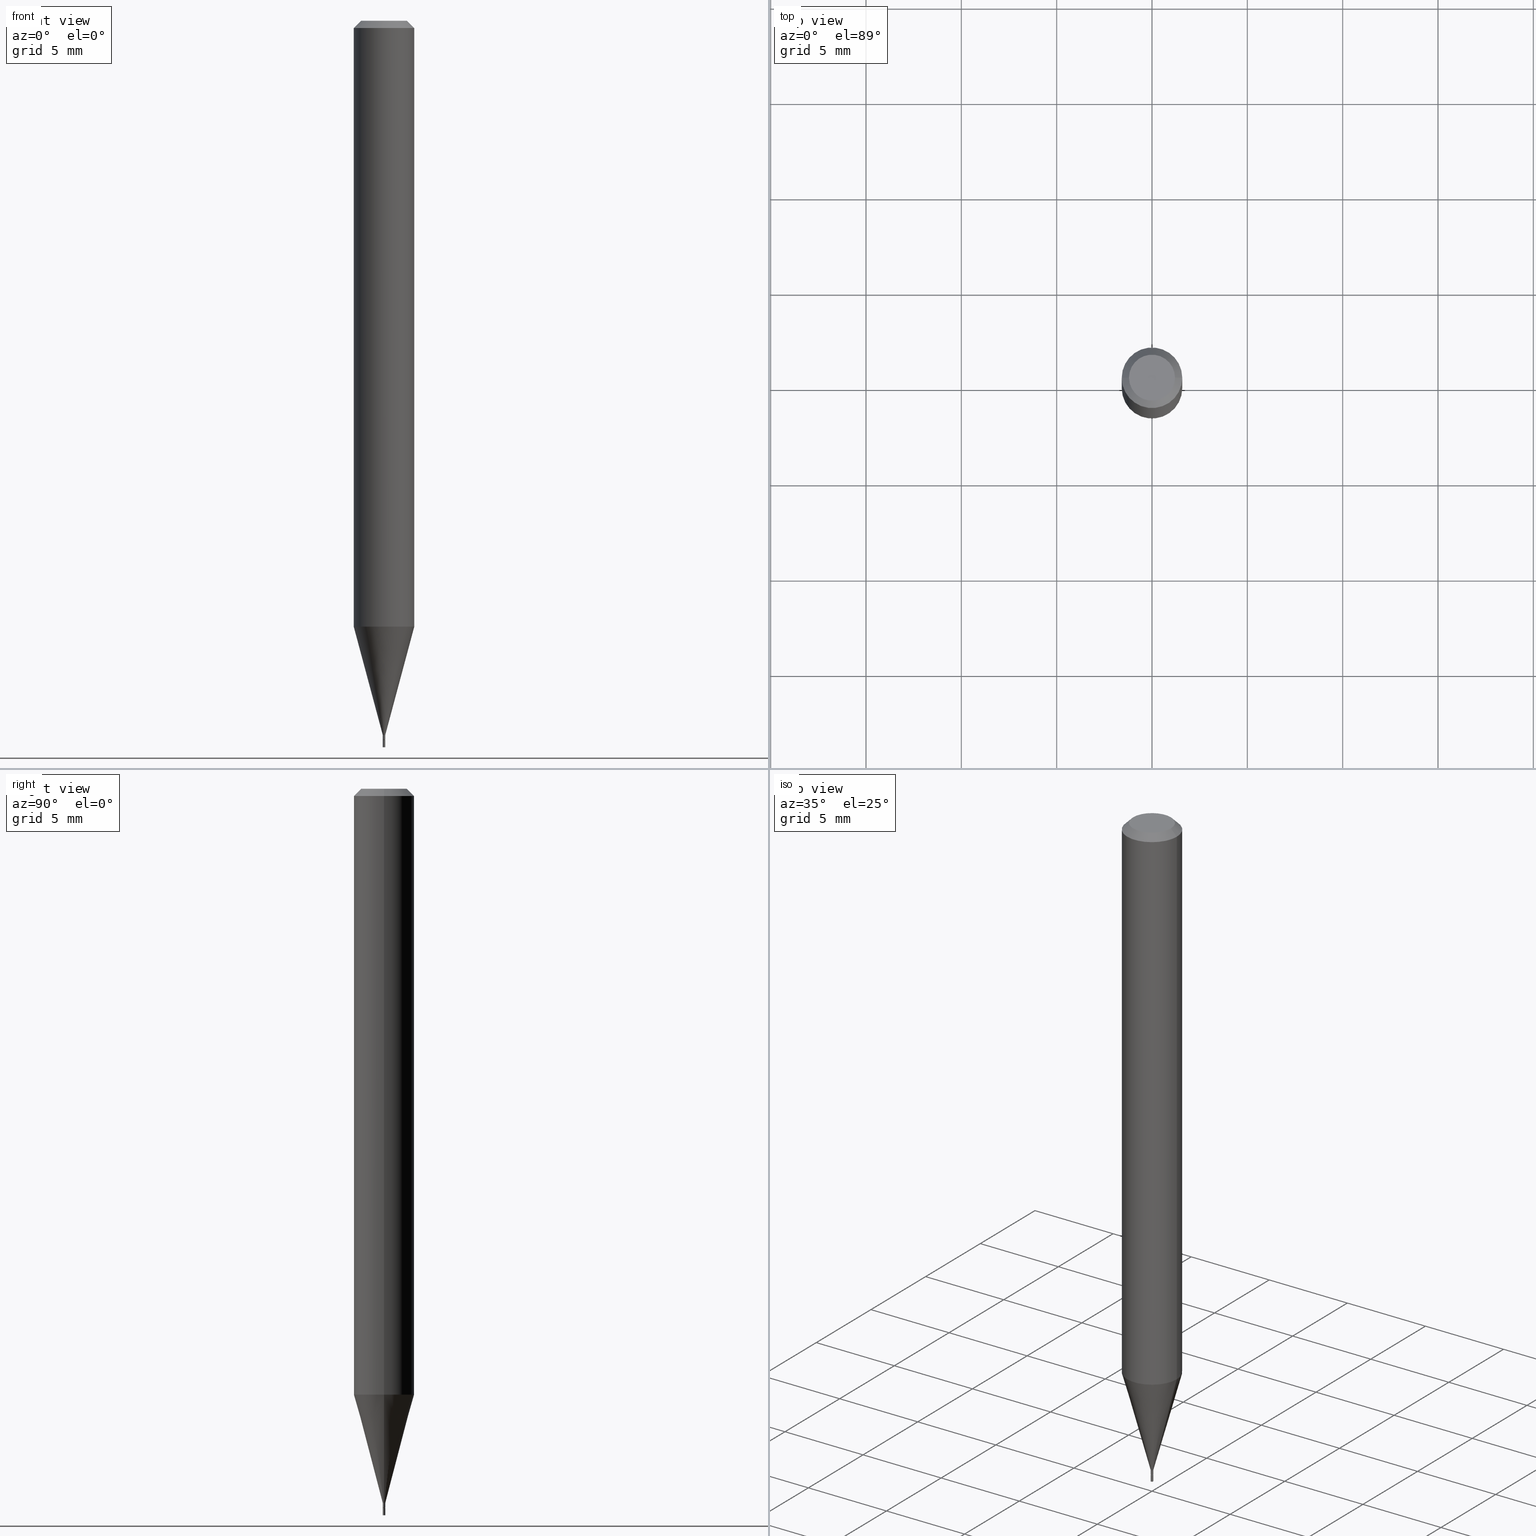
[diagram: canonical four-view strip — front | top / right | iso, engineering-drawing reading convention]
A machine part, canonical four-view strip (front | top / right | iso — engineering-drawing reading convention). The complete STEP part file that produces these views, byte-faithful:
ISO-10303-21;
HEADER;
FILE_DESCRIPTION (( 'STEP AP203' ),
    '1' );
FILE_NAME ('02275.STEP',
    '2024-03-18T19:59:43',
    ( '' ),
    ( '' ),
    'SwSTEP 2.0',
    'SolidWorks 2023',
    '' );
FILE_SCHEMA (( 'CONFIG_CONTROL_DESIGN' ));
ENDSEC;

DATA;
#1 = COORDINATED_UNIVERSAL_TIME_OFFSET ( 5, 0, .BEHIND. ) ;
#2 = LINE ( 'NONE', #253, #123 ) ;
#3 = ORIENTED_EDGE ( 'NONE', *, *, #358, .F. ) ;
#4 = CALENDAR_DATE ( 2024, 18, 3 ) ;
#5 = EDGE_CURVE ( 'NONE', #235, #274, #221, .T. ) ;
#6 = FACE_OUTER_BOUND ( 'NONE', #418, .T. ) ;
#7 = CLOSED_SHELL ( 'NONE', ( #246, #383, #28, #76, #368, #350, #32, #426, #348, #203, #432, #403 ) ) ;
#8 = ORIENTED_EDGE ( 'NONE', *, *, #353, .F. ) ;
#9 = VECTOR ( 'NONE', #66, 39.37007874015748854 ) ;
#10 = VERTEX_POINT ( 'NONE', #146 ) ;
#11 = CARTESIAN_POINT ( 'NONE',  ( 0.000000000000000000, 0.000000000000000000, 0.000000000000000000 ) ) ;
#12 = EDGE_CURVE ( 'NONE', #19, #443, #2, .T. ) ;
#13 = CARTESIAN_POINT ( 'NONE',  ( -0.002499999999999998751, -5.193272329829392708E-15, -1.485000000000000098 ) ) ;
#14 = ORIENTED_EDGE ( 'NONE', *, *, #446, .F. ) ;
#15 = AXIS2_PLACEMENT_3D ( 'NONE', #282, #388, #24 ) ;
#16 = CARTESIAN_POINT ( 'NONE',  ( 3.059469659142613603E-29, -4.368111829779168212E-15, -1.251076951545867955 ) ) ;
#17 = EDGE_LOOP ( 'NONE', ( #237, #232 ) ) ;
#18 = DIRECTION ( 'NONE',  ( -2.445468806185136597E-29, 3.491481338843145583E-15, 1.000000000000000000 ) ) ;
#19 = VERTEX_POINT ( 'NONE', #178 ) ;
#20 = CARTESIAN_POINT ( 'NONE',  ( 0.002499999999999921989, -5.167392381487857245E-15, -1.475000000000000533 ) ) ;
#21 = EDGE_CURVE ( 'NONE', #443, #208, #384, .T. ) ;
#22 = DIMENSIONAL_EXPONENTS ( 1.000000000000000000, 0.000000000000000000, 0.000000000000000000, 0.000000000000000000, 0.000000000000000000, 0.000000000000000000, 0.000000000000000000 ) ;
#23 = ORIENTED_EDGE ( 'NONE', *, *, #285, .F. ) ;
#24 = DIRECTION ( 'NONE',  ( 1.000000000000000000, -6.982962677686266711E-15, 4.876176775795936353E-29 ) ) ;
#25 = CIRCLE ( 'NONE', #139, 0.04749999999999999362 ) ;
#26 = EDGE_LOOP ( 'NONE', ( #305, #377, #333, #170 ) ) ;
#27 = ORIENTED_EDGE ( 'NONE', *, *, #85, .T. ) ;
#28 = ADVANCED_FACE ( 'NONE', ( #361 ), #196, .T. ) ;
#29 = DIRECTION ( 'NONE',  ( 1.000000000000000000, -6.982962677686267499E-15, 4.852736867747366768E-29 ) ) ;
#30 = FACE_OUTER_BOUND ( 'NONE', #311, .T. ) ;
#31 = AXIS2_PLACEMENT_3D ( 'NONE', #51, #409, #412 ) ;
#32 = ADVANCED_FACE ( 'NONE', ( #81 ), #328, .T. ) ;
#33 = APPROVAL_STATUS ( 'not_yet_approved' ) ;
#34 = DIRECTION ( 'NONE',  ( -2.445468806185136597E-29, 3.491481338843145583E-15, 1.000000000000000000 ) ) ;
#35 = EDGE_CURVE ( 'NONE', #157, #339, #195, .T. ) ;
#36 = APPROVAL_DATE_TIME ( #80, #70 ) ;
#37 = DIRECTION ( 'NONE',  ( 1.000000000000000000, -6.982962677686266711E-15, 4.876176775795935793E-29 ) ) ;
#38 = VECTOR ( 'NONE', #318, 39.37007874015748143 ) ;
#39 = PERSON_AND_ORGANIZATION ( #179, #62 ) ;
#40 = DIRECTION ( 'NONE',  ( 1.000000000000000000, -6.982962677686270655E-15, 0.000000000000000000 ) ) ;
#41 = EDGE_CURVE ( 'NONE', #274, #235, #367, .T. ) ;
#42 = COORDINATED_UNIVERSAL_TIME_OFFSET ( 5, 0, .BEHIND. ) ;
#43 = DIRECTION ( 'NONE',  ( 1.000000000000000000, -6.982962677686142071E-15, 0.000000000000000000 ) ) ;
#44 = ORIENTED_EDGE ( 'NONE', *, *, #410, .T. ) ;
#45 = CARTESIAN_POINT ( 'NONE',  ( 3.668203209277704895E-29, -5.237222008264718177E-15, -1.500000000000000222 ) ) ;
#46 = AXIS2_PLACEMENT_3D ( 'NONE', #296, #227, #355 ) ;
#47 = AXIS2_PLACEMENT_3D ( 'NONE', #69, #141, #327 ) ;
#48 = CYLINDRICAL_SURFACE ( 'NONE', #265, 0.002499999999999921989 ) ;
#49 = CARTESIAN_POINT ( 'NONE',  ( 3.631521177184928138E-29, -5.184849788182071492E-15, -1.485000000000000098 ) ) ;
#50 = CC_DESIGN_DATE_AND_TIME_ASSIGNMENT ( #214, #462, ( #292 ) ) ;
#51 = CARTESIAN_POINT ( 'NONE',  ( 3.631521177184928138E-29, -5.184849788182071492E-15, -1.485000000000000098 ) ) ;
#52 = ORIENTED_EDGE ( 'NONE', *, *, #189, .F. ) ;
#53 = VECTOR ( 'NONE', #440, 39.37007874015748143 ) ;
#54 = DIRECTION ( 'NONE',  ( -2.445468806185136877E-29, 3.491481338843145188E-15, 1.000000000000000000 ) ) ;
#55 = ORIENTED_EDGE ( 'NONE', *, *, #458, .F. ) ;
#56 = CARTESIAN_POINT ( 'NONE',  ( 3.607066489123077713E-29, -5.149934974793642209E-15, -1.475000000000000533 ) ) ;
#57 = ORIENTED_EDGE ( 'NONE', *, *, #275, .F. ) ;
#58 = FACE_OUTER_BOUND ( 'NONE', #420, .T. ) ;
#59 = ORIENTED_EDGE ( 'NONE', *, *, #260, .T. ) ;
#60 = DIRECTION ( 'NONE',  ( -2.445468806185136597E-29, 3.491481338843145583E-15, 1.000000000000000000 ) ) ;
#61 = VECTOR ( 'NONE', #54, 39.37007874015748143 ) ;
#62 = ORGANIZATION ( 'UNSPECIFIED', 'UNSPECIFIED', '' ) ;
#63 = ORIENTED_EDGE ( 'NONE', *, *, #159, .T. ) ;
#64 = DIRECTION ( 'NONE',  ( -2.445468806185136597E-29, 3.491481338843145583E-15, 1.000000000000000000 ) ) ;
#65 = DIRECTION ( 'NONE',  ( 2.438088387897960049E-29, -3.491481338843145188E-15, -1.000000000000000000 ) ) ;
#66 = DIRECTION ( 'NONE',  ( -0.2588190451025211281, 5.211531920934547886E-15, 0.9659258262890679791 ) ) ;
#67 = AXIS2_PLACEMENT_3D ( 'NONE', #45, #434, #115 ) ;
#68 = CIRCLE ( 'NONE', #332, 0.002499999999999921989 ) ;
#69 = CARTESIAN_POINT ( 'NONE',  ( 0.000000000000000000, 0.000000000000000000, 0.000000000000000000 ) ) ;
#70 = APPROVAL ( #356, 'UNSPECIFIED' ) ;
#71 = CARTESIAN_POINT ( 'NONE',  ( 0.000000000000000000, 0.000000000000000000, 0.000000000000000000 ) ) ;
#72 = PERSON_AND_ORGANIZATION_ROLE ( 'creator' ) ;
#73 = CARTESIAN_POINT ( 'NONE',  ( 3.630298442781835897E-29, -5.183104047512649988E-15, -1.484500000000000153 ) ) ;
#74 = APPROVAL_DATE_TIME ( #461, #320 ) ;
#75 = FACE_OUTER_BOUND ( 'NONE', #119, .T. ) ;
#76 = ADVANCED_FACE ( 'NONE', ( #6 ), #187, .T. ) ;
#77 = AXIS2_PLACEMENT_3D ( 'NONE', #202, #103, #278 ) ;
#78 = ORIENTED_EDGE ( 'NONE', *, *, #91, .F. ) ;
#79 = CARTESIAN_POINT ( 'NONE',  ( 0.001999999999999999608, -5.198815713537444309E-15, -1.485000000000000098 ) ) ;
#80 = DATE_AND_TIME ( #400, #324 ) ;
#81 = FACE_OUTER_BOUND ( 'NONE', #277, .T. ) ;
#82 = FACE_OUTER_BOUND ( 'NONE', #454, .T. ) ;
#83 = CC_DESIGN_DATE_AND_TIME_ASSIGNMENT ( #217, #284, ( #386 ) ) ;
#84 = FACE_OUTER_BOUND ( 'NONE', #17, .T. ) ;
#85 = EDGE_CURVE ( 'NONE', #413, #346, #180, .T. ) ;
#86 = PLANE ( 'NONE',  #323 ) ;
#87 = VERTEX_POINT ( 'NONE', #225 ) ;
#88 = LINE ( 'NONE', #94, #435 ) ;
#89 = PRODUCT ( '02275', '02275', '', ( #220 ) ) ;
#90 = ORIENTED_EDGE ( 'NONE', *, *, #258, .F. ) ;
#91 = EDGE_CURVE ( 'NONE', #10, #346, #464, .T. ) ;
#92 = CIRCLE ( 'NONE', #317, 0.002499999999999921989 ) ;
#93 = PRODUCT_DEFINITION_FORMATION_WITH_SPECIFIED_SOURCE ( 'ANY', '', #89, .NOT_KNOWN. ) ;
#94 = CARTESIAN_POINT ( 'NONE',  ( -0.002499999999999998751, 1.776356839400249577E-17, -1.229733772563725911E-31 ) ) ;
#95 = ORIENTED_EDGE ( 'NONE', *, *, #5, .T. ) ;
#96 = CARTESIAN_POINT ( 'NONE',  ( 0.001999999999999999608, -5.198815713537444309E-15, -1.485000000000000098 ) ) ;
#97 = PRODUCT_DEFINITION_SHAPE ( 'NONE', 'NONE',  #292 ) ;
#98 = MANIFOLD_SOLID_BREP ( 'Body-Move/Copy2[2]', #7 ) ;
#99 = ORIENTED_EDGE ( 'NONE', *, *, #285, .T. ) ;
#100 = FACE_OUTER_BOUND ( 'NONE', #341, .T. ) ;
#101 = ORIENTED_EDGE ( 'NONE', *, *, #451, .T. ) ;
#102 = CONICAL_SURFACE ( 'NONE', #359, 0.06250000000000000000, 0.7853981633974278509 ) ;
#103 = DIRECTION ( 'NONE',  ( -2.445468806185136597E-29, 3.491481338843145583E-15, 1.000000000000000000 ) ) ;
#104 = DIRECTION ( 'NONE',  ( 1.000000000000000000, -6.982962677686356641E-15, 0.000000000000000000 ) ) ;
#105 = PERSON_AND_ORGANIZATION ( #179, #62 ) ;
#106 = DIRECTION ( 'NONE',  ( 1.000000000000000000, -6.982962677686266711E-15, 4.876176775795936914E-29 ) ) ;
#107 = CONICAL_SURFACE ( 'NONE', #345, 0.002499999999999921989, 0.2617993877991498519 ) ;
#108 = LOCAL_TIME ( 15, 59, 43.00000000000000000, #148 ) ;
#109 = APPLICATION_PROTOCOL_DEFINITION ( 'international standard', 'config_control_design', 1994, #137 ) ;
#110 = CARTESIAN_POINT ( 'NONE',  ( 3.668203209277705088E-31, -5.237222008264718399E-17, -0.01499999999999999944 ) ) ;
#111 = SHAPE_DEFINITION_REPRESENTATION ( #97, #286 ) ;
#112 = CC_DESIGN_PERSON_AND_ORGANIZATION_ASSIGNMENT ( #436, #431, ( #386 ) ) ;
#113 = DIRECTION ( 'NONE',  ( 1.000000000000000000, -6.982962677686267499E-15, 4.852736867747366768E-29 ) ) ;
#114 = APPROVAL_STATUS ( 'not_yet_approved' ) ;
#115 = DIRECTION ( 'NONE',  ( 1.000000000000000000, -6.982962677686142071E-15, 0.000000000000000000 ) ) ;
#116 = CIRCLE ( 'NONE', #302, 0.06250000000000000000 ) ;
#117 = APPROVAL_ROLE ( '' ) ;
#118 = DIRECTION ( 'NONE',  ( -0.7071067811865330288, 2.468850131082105205E-15, -0.7071067811865620056 ) ) ;
#119 = EDGE_LOOP ( 'NONE', ( #128, #271 ) ) ;
#120 = CARTESIAN_POINT ( 'NONE',  ( 3.607066489123077713E-29, -5.149934974793642209E-15, -1.475000000000000533 ) ) ;
#121 = PRODUCT_RELATED_PRODUCT_CATEGORY ( 'detail', '', ( #89 ) ) ;
#122 = DIRECTION ( 'NONE',  ( -2.445468806185136597E-29, 3.491481338843145583E-15, 1.000000000000000000 ) ) ;
#123 = VECTOR ( 'NONE', #118, 39.37007874015748143 ) ;
#124 = AXIS2_PLACEMENT_3D ( 'NONE', #49, #193, #336 ) ;
#125 = CC_DESIGN_APPROVAL ( #135, ( #292 ) ) ;
#126 = FACE_OUTER_BOUND ( 'NONE', #197, .T. ) ;
#127 = DIRECTION ( 'NONE',  ( -2.445468806185136597E-29, 3.491481338843145583E-15, 1.000000000000000000 ) ) ;
#128 = ORIENTED_EDGE ( 'NONE', *, *, #267, .F. ) ;
#129 = CARTESIAN_POINT ( 'NONE',  ( -0.002499999999999921989, 1.776356839400195035E-17, -1.229733772563688032E-31 ) ) ;
#130 = ORIENTED_EDGE ( 'NONE', *, *, #353, .T. ) ;
#131 = CIRCLE ( 'NONE', #124, 0.001999999999999999608 ) ;
#132 = ORIENTED_EDGE ( 'NONE', *, *, #267, .T. ) ;
#133 = DIRECTION ( 'NONE',  ( 1.000000000000000000, -6.982962677686334553E-15, 0.000000000000000000 ) ) ;
#134 = VERTEX_POINT ( 'NONE', #463 ) ;
#135 = APPROVAL ( #114, 'UNSPECIFIED' ) ;
#136 = ORIENTED_EDGE ( 'NONE', *, *, #21, .T. ) ;
#137 = APPLICATION_CONTEXT ( 'configuration controlled 3d designs of mechanical parts and assemblies' ) ;
#138 = DIRECTION ( 'NONE',  ( -2.445468806185136597E-29, 3.491481338843145583E-15, 1.000000000000000000 ) ) ;
#139 = AXIS2_PLACEMENT_3D ( 'NONE', #145, #433, #113 ) ;
#140 = LINE ( 'NONE', #382, #422 ) ;
#141 = DIRECTION ( 'NONE',  ( 0.000000000000000000, 0.000000000000000000, 1.000000000000000000 ) ) ;
#142 = APPROVAL_ROLE ( '' ) ;
#143 = CARTESIAN_POINT ( 'NONE',  ( 0.000000000000000000, 0.000000000000000000, 0.000000000000000000 ) ) ;
#144 = CONICAL_SURFACE ( 'NONE', #205, 0.001999999999999999608, 0.7853981633974718157 ) ;
#145 = CARTESIAN_POINT ( 'NONE',  ( -1.505681066337554235E-44, 2.149713515899588158E-30, 6.157024217726067260E-16 ) ) ;
#146 = CARTESIAN_POINT ( 'NONE',  ( -0.002499999999999921989, -5.165340479118648651E-15, -1.484500000000000153 ) ) ;
#147 = ORIENTED_EDGE ( 'NONE', *, *, #174, .F. ) ;
#148 = COORDINATED_UNIVERSAL_TIME_OFFSET ( 5, 0, .BEHIND. ) ;
#149 = DIRECTION ( 'NONE',  ( -2.445468806185136597E-29, 3.491481338843145583E-15, 1.000000000000000000 ) ) ;
#150 = AXIS2_PLACEMENT_3D ( 'NONE', #120, #340, #269 ) ;
#151 = ORIENTED_EDGE ( 'NONE', *, *, #446, .T. ) ;
#152 = CARTESIAN_POINT ( 'NONE',  ( 0.06250000000000000000, -4.888073874380388472E-16, -0.01499999999999999944 ) ) ;
#153 = ADVANCED_FACE ( 'NONE', ( #218 ), #423, .T. ) ;
#154 = CARTESIAN_POINT ( 'NONE',  ( 0.002499999999999998751, -1.745740669421565815E-17, 1.219044193948983554E-31 ) ) ;
#155 = DIRECTION ( 'NONE',  ( -1.000000000000000000, 6.982962677686265922E-15, -4.876176775795935793E-29 ) ) ;
#156 = AXIS2_PLACEMENT_3D ( 'NONE', #110, #222, #395 ) ;
#157 = VERTEX_POINT ( 'NONE', #437 ) ;
#158 = CIRCLE ( 'NONE', #234, 0.002499999999999998751 ) ;
#159 = EDGE_CURVE ( 'NONE', #346, #10, #92, .T. ) ;
#160 = LINE ( 'NONE', #154, #352 ) ;
#161 = ORIENTED_EDGE ( 'NONE', *, *, #41, .T. ) ;
#162 = DIRECTION ( 'NONE',  ( 1.000000000000000000, -6.982962677686270655E-15, 0.000000000000000000 ) ) ;
#163 = EDGE_LOOP ( 'NONE', ( #343, #95, #190, #57 ) ) ;
#164 = ORIENTED_EDGE ( 'NONE', *, *, #258, .T. ) ;
#165 = CC_DESIGN_SECURITY_CLASSIFICATION ( #386, ( #93 ) ) ;
#166 = DIRECTION ( 'NONE',  ( -1.000000000000000000, 6.982962677686266711E-15, 0.000000000000000000 ) ) ;
#167 = VERTEX_POINT ( 'NONE', #289 ) ;
#168 = EDGE_CURVE ( 'NONE', #134, #87, #428, .T. ) ;
#169 = FACE_OUTER_BOUND ( 'NONE', #365, .T. ) ;
#170 = ORIENTED_EDGE ( 'NONE', *, *, #410, .F. ) ;
#171 = CARTESIAN_POINT ( 'NONE',  ( 0.002499999999999921989, -5.167392381487857245E-15, -1.475000000000000533 ) ) ;
#172 = AXIS2_PLACEMENT_3D ( 'NONE', #73, #149, #280 ) ;
#173 = CARTESIAN_POINT ( 'NONE',  ( -0.002499999999999921989, -5.132171406399640083E-15, -1.475000000000000533 ) ) ;
#174 = EDGE_CURVE ( 'NONE', #87, #443, #184, .T. ) ;
#175 = APPROVAL_PERSON_ORGANIZATION ( #105, #70, #117 ) ;
#176 = APPROVAL_ROLE ( '' ) ;
#177 = PERSON_AND_ORGANIZATION_ROLE ( 'creator' ) ;
#178 = CARTESIAN_POINT ( 'NONE',  ( -0.04749999999999999362, 3.578768372314221353E-16, 6.157024217726043594E-16 ) ) ;
#179 = PERSON ( 'UNSPECIFIED', 'UNSPECIFIED', 'UNSPECIFIED', ('UNSPECIFIED'), ('UNSPECIFIED'), ('UNSPECIFIED') ) ;
#180 = LINE ( 'NONE', #79, #295 ) ;
#181 = VECTOR ( 'NONE', #421, 39.37007874015748854 ) ;
#182 = CC_DESIGN_PERSON_AND_ORGANIZATION_ASSIGNMENT ( #394, #294, ( #93 ) ) ;
#183 = SECURITY_CLASSIFICATION_LEVEL ( 'unclassified' ) ;
#184 = LINE ( 'NONE', #325, #415 ) ;
#185 = EDGE_LOOP ( 'NONE', ( #3, #313, #101, #402 ) ) ;
#186 = PERSON_AND_ORGANIZATION ( #179, #62 ) ;
#187 = CYLINDRICAL_SURFACE ( 'NONE', #212, 0.06250000000000000000 ) ;
#188 = ORIENTED_EDGE ( 'NONE', *, *, #270, .T. ) ;
#189 = EDGE_CURVE ( 'NONE', #19, #242, #25, .T. ) ;
#190 = ORIENTED_EDGE ( 'NONE', *, *, #252, .T. ) ;
#191 = AXIS2_PLACEMENT_3D ( 'NONE', #256, #293, #43 ) ;
#192 = DIRECTION ( 'NONE',  ( 1.000000000000000000, -6.982962677686265922E-15, 4.876176775795935793E-29 ) ) ;
#193 = DIRECTION ( 'NONE',  ( -2.445468806185136597E-29, 3.491481338843145583E-15, 1.000000000000000000 ) ) ;
#194 = CARTESIAN_POINT ( 'NONE',  ( 3.631521177184928138E-29, -5.184849788182071492E-15, -1.485000000000000098 ) ) ;
#195 = CIRCLE ( 'NONE', #46, 0.002499999999999998751 ) ;
#196 = CONICAL_SURFACE ( 'NONE', #396, 0.06250000000000000000, 0.7853981633974278509 ) ;
#197 = EDGE_LOOP ( 'NONE', ( #379, #216 ) ) ;
#198 = FACE_OUTER_BOUND ( 'NONE', #201, .T. ) ;
#199 = ORIENTED_EDGE ( 'NONE', *, *, #159, .F. ) ;
#200 = CARTESIAN_POINT ( 'NONE',  ( -0.002499999999999998751, -5.193272329829392708E-15, -1.500000000000000222 ) ) ;
#201 = EDGE_LOOP ( 'NONE', ( #161, #188, #416, #445 ) ) ;
#202 = CARTESIAN_POINT ( 'NONE',  ( 3.631521177184928138E-29, -5.184849788182071492E-15, -1.485000000000000098 ) ) ;
#203 = ADVANCED_FACE ( 'NONE', ( #75 ), #86, .F. ) ;
#204 = ORIENTED_EDGE ( 'NONE', *, *, #260, .F. ) ;
#205 = AXIS2_PLACEMENT_3D ( 'NONE', #417, #138, #133 ) ;
#206 = LOCAL_TIME ( 15, 59, 43.00000000000000000, #1 ) ;
#207 = DIRECTION ( 'NONE',  ( -2.445468806185136877E-29, 3.491481338843145188E-15, 1.000000000000000000 ) ) ;
#208 = VERTEX_POINT ( 'NONE', #152 ) ;
#209 = PLANE ( 'NONE',  #407 ) ;
#210 = CC_DESIGN_PERSON_AND_ORGANIZATION_ASSIGNMENT ( #186, #177, ( #292 ) ) ;
#211 = CARTESIAN_POINT ( 'NONE',  ( 3.607066489123077713E-29, -5.149934974793642209E-15, -1.475000000000000533 ) ) ;
#212 = AXIS2_PLACEMENT_3D ( 'NONE', #322, #399, #37 ) ;
#213 =( CONVERSION_BASED_UNIT ( 'INCH', #389 ) LENGTH_UNIT ( ) NAMED_UNIT ( #22 ) );
#214 = DATE_AND_TIME ( #321, #266 ) ;
#215 = APPLICATION_CONTEXT ( 'configuration controlled 3d designs of mechanical parts and assemblies' ) ;
#216 = ORIENTED_EDGE ( 'NONE', *, *, #358, .T. ) ;
#217 = DATE_AND_TIME ( #427, #206 ) ;
#218 = FACE_OUTER_BOUND ( 'NONE', #163, .T. ) ;
#219 = EDGE_CURVE ( 'NONE', #87, #134, #116, .T. ) ;
#220 = MECHANICAL_CONTEXT ( 'NONE', #137, 'mechanical' ) ;
#221 = CIRCLE ( 'NONE', #67, 0.002499999999999998751 ) ;
#222 = DIRECTION ( 'NONE',  ( -2.445468806185136597E-29, 3.491481338843145583E-15, 1.000000000000000000 ) ) ;
#223 = CC_DESIGN_APPROVAL ( #70, ( #386 ) ) ;
#224 = PERSON_AND_ORGANIZATION_ROLE ( 'design_owner' ) ;
#225 = CARTESIAN_POINT ( 'NONE',  ( -0.06250000000000000000, -3.924022619929106385E-15, -1.251076951545867955 ) ) ;
#226 = ORIENTED_EDGE ( 'NONE', *, *, #275, .T. ) ;
#227 = DIRECTION ( 'NONE',  ( -2.445468806185136597E-29, 3.491481338843145583E-15, 1.000000000000000000 ) ) ;
#228 = CYLINDRICAL_SURFACE ( 'NONE', #397, 0.002499999999999998751 ) ;
#229 = AXIS2_PLACEMENT_3D ( 'NONE', #254, #357, #40 ) ;
#230 = LINE ( 'NONE', #301, #243 ) ;
#231 = CARTESIAN_POINT ( 'NONE',  ( 0.04749999999999999362, -4.035134999187568269E-16, 6.157024217726092898E-16 ) ) ;
#232 = ORIENTED_EDGE ( 'NONE', *, *, #5, .F. ) ;
#233 = DIRECTION ( 'NONE',  ( -2.445468806185136597E-29, 3.491481338843145583E-15, 1.000000000000000000 ) ) ;
#234 = AXIS2_PLACEMENT_3D ( 'NONE', #194, #233, #414 ) ;
#235 = VERTEX_POINT ( 'NONE', #200 ) ;
#236 = LINE ( 'NONE', #299, #53 ) ;
#237 = ORIENTED_EDGE ( 'NONE', *, *, #41, .F. ) ;
#238 = ADVANCED_FACE ( 'NONE', ( #84 ), #272, .F. ) ;
#239 = CARTESIAN_POINT ( 'NONE',  ( 0.002499999999999921989, -1.745740669421512197E-17, 1.219044193948946113E-31 ) ) ;
#240 = ORIENTED_EDGE ( 'NONE', *, *, #174, .T. ) ;
#241 = CARTESIAN_POINT ( 'NONE',  ( 3.607066489123077713E-29, -5.149934974793642209E-15, -1.475000000000000533 ) ) ;
#242 = VERTEX_POINT ( 'NONE', #231 ) ;
#243 = VECTOR ( 'NONE', #371, 39.37007874015748143 ) ;
#244 = DESIGN_CONTEXT ( 'detailed design', #215, 'design' ) ;
#245 =( NAMED_UNIT ( * ) SI_UNIT ( $, .STERADIAN. ) SOLID_ANGLE_UNIT ( ) );
#246 = ADVANCED_FACE ( 'NONE', ( #82 ), #48, .T. ) ;
#247 = ADVANCED_FACE ( 'NONE', ( #198 ), #228, .T. ) ;
#248 = CARTESIAN_POINT ( 'NONE',  ( 3.316907271900976096E-16, 0.04749999999999999362, 1.420058472912539912E-16 ) ) ;
#249 = CARTESIAN_POINT ( 'NONE',  ( -1.505681066337554235E-44, 2.149713515899588158E-30, 6.157024217726067260E-16 ) ) ;
#250 = DIRECTION ( 'NONE',  ( -1.000000000000000000, 6.982962677686266711E-15, 0.000000000000000000 ) ) ;
#251 = COORDINATED_UNIVERSAL_TIME_OFFSET ( 5, 0, .BEHIND. ) ;
#252 = EDGE_CURVE ( 'NONE', #274, #157, #160, .T. ) ;
#253 = CARTESIAN_POINT ( 'NONE',  ( -0.06250000000000000000, 3.840629472727444916E-16, -0.01499999999999999944 ) ) ;
#254 = CARTESIAN_POINT ( 'NONE',  ( 3.059469659142613603E-29, -4.368111829779168212E-15, -1.251076951545867955 ) ) ;
#255 = AXIS2_PLACEMENT_3D ( 'NONE', #143, #366, #106 ) ;
#256 = CARTESIAN_POINT ( 'NONE',  ( 3.668203209277704895E-29, -5.237222008264718177E-15, -1.500000000000000222 ) ) ;
#257 = AXIS2_PLACEMENT_3D ( 'NONE', #211, #380, #349 ) ;
#258 = EDGE_CURVE ( 'NONE', #438, #362, #448, .T. ) ;
#259 = COORDINATED_UNIVERSAL_TIME_OFFSET ( 5, 0, .BEHIND. ) ;
#260 = EDGE_CURVE ( 'NONE', #10, #438, #404, .T. ) ;
#261 = DIRECTION ( 'NONE',  ( 2.445468806185136597E-29, -3.491481338843145583E-15, -1.000000000000000000 ) ) ;
#262 = ORIENTED_EDGE ( 'NONE', *, *, #219, .F. ) ;
#263 = CARTESIAN_POINT ( 'NONE',  ( 1.745740669425197348E-17, 0.002499999999994814096, -1.485000000000000098 ) ) ;
#264 = CARTESIAN_POINT ( 'NONE',  ( 0.002499999999999998751, -5.254679414958934001E-15, -1.500000000000000222 ) ) ;
#265 = AXIS2_PLACEMENT_3D ( 'NONE', #11, #334, #306 ) ;
#266 = LOCAL_TIME ( 15, 59, 43.00000000000000000, #251 ) ;
#267 = EDGE_CURVE ( 'NONE', #413, #167, #273, .T. ) ;
#268 = CARTESIAN_POINT ( 'NONE',  ( 3.631521177184928138E-29, -5.184849788182071492E-15, -1.485000000000000098 ) ) ;
#269 = DIRECTION ( 'NONE',  ( 1.000000000000000000, -6.982962677686356641E-15, 0.000000000000000000 ) ) ;
#270 = EDGE_CURVE ( 'NONE', #235, #339, #88, .T. ) ;
#271 = ORIENTED_EDGE ( 'NONE', *, *, #335, .F. ) ;
#272 = PLANE ( 'NONE',  #376 ) ;
#273 = CIRCLE ( 'NONE', #31, 0.001999999999999999608 ) ;
#274 = VERTEX_POINT ( 'NONE', #264 ) ;
#275 = EDGE_CURVE ( 'NONE', #339, #157, #158, .T. ) ;
#276 = CYLINDRICAL_SURFACE ( 'NONE', #15, 0.002499999999999921989 ) ;
#277 = EDGE_LOOP ( 'NONE', ( #147, #373, #151, #411 ) ) ;
#278 = DIRECTION ( 'NONE',  ( 1.000000000000000000, -6.982962677686334553E-15, 0.000000000000000000 ) ) ;
#279 = ORIENTED_EDGE ( 'NONE', *, *, #91, .T. ) ;
#280 = DIRECTION ( 'NONE',  ( 1.000000000000000000, -6.982962677686356641E-15, 0.000000000000000000 ) ) ;
#281 = CONICAL_SURFACE ( 'NONE', #77, 0.001999999999999999608, 0.7853981633974718157 ) ;
#282 = CARTESIAN_POINT ( 'NONE',  ( 0.000000000000000000, 0.000000000000000000, 0.000000000000000000 ) ) ;
#283 = CARTESIAN_POINT ( 'NONE',  ( -0.06250000000000000000, -1.766152815080845227E-15, -0.01499999999999999944 ) ) ;
#284 = DATE_TIME_ROLE ( 'classification_date' ) ;
#285 = EDGE_CURVE ( 'NONE', #167, #10, #236, .T. ) ;
#286 = ADVANCED_BREP_SHAPE_REPRESENTATION ( '02275', ( #405, #98, #47 ), #424 ) ;
#287 = CIRCLE ( 'NONE', #390, 0.04749999999999999362 ) ;
#288 = PERSON_AND_ORGANIZATION ( #179, #62 ) ;
#289 = CARTESIAN_POINT ( 'NONE',  ( -0.001999999999999999608, -5.167989706292759063E-15, -1.485000000000000098 ) ) ;
#290 = APPROVAL_DATE_TIME ( #319, #135 ) ;
#291 = CARTESIAN_POINT ( 'NONE',  ( 3.668203209277705088E-31, -5.237222008264718399E-17, -0.01499999999999999944 ) ) ;
#292 = PRODUCT_DEFINITION ( 'UNKNOWN', '', #93, #244 ) ;
#293 = DIRECTION ( 'NONE',  ( -2.445468806185136597E-29, 3.491481338843145583E-15, 1.000000000000000000 ) ) ;
#294 = PERSON_AND_ORGANIZATION_ROLE ( 'design_supplier' ) ;
#295 = VECTOR ( 'NONE', #393, 39.37007874015748143 ) ;
#296 = CARTESIAN_POINT ( 'NONE',  ( 3.631521177184928138E-29, -5.184849788182071492E-15, -1.485000000000000098 ) ) ;
#297 = ORIENTED_EDGE ( 'NONE', *, *, #451, .F. ) ;
#298 = FACE_OUTER_BOUND ( 'NONE', #308, .T. ) ;
#299 = CARTESIAN_POINT ( 'NONE',  ( -0.001999999999999999608, -5.170638933466869476E-15, -1.485000000000000098 ) ) ;
#300 = EDGE_CURVE ( 'NONE', #362, #438, #68, .T. ) ;
#301 = CARTESIAN_POINT ( 'NONE',  ( 0.06250000000000000000, -4.811533449433679005E-16, -0.01499999999999999944 ) ) ;
#302 = AXIS2_PLACEMENT_3D ( 'NONE', #16, #18, #162 ) ;
#303 = CC_DESIGN_APPROVAL ( #320, ( #93 ) ) ;
#304 = DIRECTION ( 'NONE',  ( -2.438088387897960049E-29, 3.491481338843145188E-15, 1.000000000000000000 ) ) ;
#305 = ORIENTED_EDGE ( 'NONE', *, *, #300, .T. ) ;
#306 = DIRECTION ( 'NONE',  ( 1.000000000000000000, -6.982962677686266711E-15, 4.876176775795936353E-29 ) ) ;
#307 = CC_DESIGN_PERSON_AND_ORGANIZATION_ASSIGNMENT ( #288, #72, ( #93 ) ) ;
#308 = EDGE_LOOP ( 'NONE', ( #381, #226 ) ) ;
#309 =( NAMED_UNIT ( * ) PLANE_ANGLE_UNIT ( ) SI_UNIT ( $, .RADIAN. ) );
#310 = CONICAL_SURFACE ( 'NONE', #257, 0.002499999999999921989, 0.2617993877991498519 ) ;
#311 = EDGE_LOOP ( 'NONE', ( #55, #164, #44, #262 ) ) ;
#312 = DIRECTION ( 'NONE',  ( 1.000000000000000000, -6.982962677686266711E-15, 0.000000000000000000 ) ) ;
#313 = ORIENTED_EDGE ( 'NONE', *, *, #329, .T. ) ;
#314 =( LENGTH_UNIT ( ) NAMED_UNIT ( * ) SI_UNIT ( $, .METRE. ) );
#315 = ORIENTED_EDGE ( 'NONE', *, *, #300, .F. ) ;
#316 = CARTESIAN_POINT ( 'NONE',  ( 3.668203209277705088E-31, -5.237222008264718399E-17, -0.01499999999999999944 ) ) ;
#317 = AXIS2_PLACEMENT_3D ( 'NONE', #391, #34, #364 ) ;
#318 = DIRECTION ( 'NONE',  ( -2.445468806185136877E-29, 3.491481338843145188E-15, 1.000000000000000000 ) ) ;
#319 = DATE_AND_TIME ( #4, #429 ) ;
#320 = APPROVAL ( #33, 'UNSPECIFIED' ) ;
#321 = CALENDAR_DATE ( 2024, 18, 3 ) ;
#322 = CARTESIAN_POINT ( 'NONE',  ( 0.000000000000000000, 0.000000000000000000, 0.000000000000000000 ) ) ;
#323 = AXIS2_PLACEMENT_3D ( 'NONE', #268, #337, #192 ) ;
#324 = LOCAL_TIME ( 15, 59, 43.00000000000000000, #259 ) ;
#325 = CARTESIAN_POINT ( 'NONE',  ( -0.06250000000000000000, 4.440892098500626162E-16, -3.074334431409316114E-30 ) ) ;
#326 = ADVANCED_FACE ( 'NONE', ( #298 ), #439, .F. ) ;
#327 = DIRECTION ( 'NONE',  ( 1.000000000000000000, 0.000000000000000000, 0.000000000000000000 ) ) ;
#328 = CYLINDRICAL_SURFACE ( 'NONE', #459, 0.06250000000000000000 ) ;
#329 = EDGE_CURVE ( 'NONE', #242, #208, #230, .T. ) ;
#330 = DIRECTION ( 'NONE',  ( -2.445468806185136597E-29, 3.491481338843145583E-15, 1.000000000000000000 ) ) ;
#331 = ORIENTED_EDGE ( 'NONE', *, *, #335, .T. ) ;
#332 = AXIS2_PLACEMENT_3D ( 'NONE', #56, #122, #342 ) ;
#333 = ORIENTED_EDGE ( 'NONE', *, *, #168, .F. ) ;
#334 = DIRECTION ( 'NONE',  ( -2.445468806185136597E-29, 3.491481338843145583E-15, 1.000000000000000000 ) ) ;
#335 = EDGE_CURVE ( 'NONE', #167, #413, #131, .T. ) ;
#336 = DIRECTION ( 'NONE',  ( 1.000000000000000000, -6.982962677686334553E-15, 0.000000000000000000 ) ) ;
#337 = DIRECTION ( 'NONE',  ( -2.438088387897960049E-29, 3.491481338843145188E-15, 1.000000000000000000 ) ) ;
#338 = AXIS2_PLACEMENT_3D ( 'NONE', #263, #408, #155 ) ;
#339 = VERTEX_POINT ( 'NONE', #13 ) ;
#340 = DIRECTION ( 'NONE',  ( -2.445468806185136597E-29, 3.491481338843145583E-15, 1.000000000000000000 ) ) ;
#341 = EDGE_LOOP ( 'NONE', ( #385, #52, #450, #136 ) ) ;
#342 = DIRECTION ( 'NONE',  ( 1.000000000000000000, -6.982962677686356641E-15, 0.000000000000000000 ) ) ;
#343 = ORIENTED_EDGE ( 'NONE', *, *, #270, .F. ) ;
#344 = DIRECTION ( 'NONE',  ( -1.000000000000000000, 6.982962677686265922E-15, -4.876176775795935793E-29 ) ) ;
#345 = AXIS2_PLACEMENT_3D ( 'NONE', #241, #457, #104 ) ;
#346 = VERTEX_POINT ( 'NONE', #441 ) ;
#347 = ORIENTED_EDGE ( 'NONE', *, *, #168, .T. ) ;
#348 = ADVANCED_FACE ( 'NONE', ( #126 ), #209, .F. ) ;
#349 = DIRECTION ( 'NONE',  ( 1.000000000000000000, -6.982962677686356641E-15, 0.000000000000000000 ) ) ;
#350 = ADVANCED_FACE ( 'NONE', ( #30 ), #310, .T. ) ;
#351 = FACE_OUTER_BOUND ( 'NONE', #456, .T. ) ;
#352 = VECTOR ( 'NONE', #375, 39.37007874015748143 ) ;
#353 = EDGE_CURVE ( 'NONE', #346, #362, #460, .T. ) ;
#354 = PERSON_AND_ORGANIZATION ( #179, #62 ) ;
#355 = DIRECTION ( 'NONE',  ( 1.000000000000000000, -6.982962677686142071E-15, 0.000000000000000000 ) ) ;
#356 = APPROVAL_STATUS ( 'not_yet_approved' ) ;
#357 = DIRECTION ( 'NONE',  ( -2.445468806185136597E-29, 3.491481338843145583E-15, 1.000000000000000000 ) ) ;
#358 = EDGE_CURVE ( 'NONE', #242, #19, #287, .T. ) ;
#359 = AXIS2_PLACEMENT_3D ( 'NONE', #316, #425, #166 ) ;
#360 = APPLICATION_PROTOCOL_DEFINITION ( 'international standard', 'config_control_design', 1994, #215 ) ;
#361 = FACE_OUTER_BOUND ( 'NONE', #185, .T. ) ;
#362 = VERTEX_POINT ( 'NONE', #20 ) ;
#363 = PERSON_AND_ORGANIZATION ( #179, #62 ) ;
#364 = DIRECTION ( 'NONE',  ( 1.000000000000000000, -6.982962677686356641E-15, 0.000000000000000000 ) ) ;
#365 = EDGE_LOOP ( 'NONE', ( #204, #279, #130, #90 ) ) ;
#366 = DIRECTION ( 'NONE',  ( -2.445468806185136597E-29, 3.491481338843145583E-15, 1.000000000000000000 ) ) ;
#367 = CIRCLE ( 'NONE', #191, 0.002499999999999998751 ) ;
#368 = ADVANCED_FACE ( 'NONE', ( #419 ), #107, .T. ) ;
#369 = DIRECTION ( 'NONE',  ( 1.000000000000000000, -6.982962677686266711E-15, 4.876176775795936914E-29 ) ) ;
#370 = APPROVAL_PERSON_ORGANIZATION ( #39, #320, #142 ) ;
#371 = DIRECTION ( 'NONE',  ( 0.7071067811865330288, -7.319954787623207136E-15, -0.7071067811865620056 ) ) ;
#372 = CARTESIAN_POINT ( 'NONE',  ( 0.000000000000000000, 0.000000000000000000, 0.000000000000000000 ) ) ;
#373 = ORIENTED_EDGE ( 'NONE', *, *, #219, .T. ) ;
#374 = CC_DESIGN_PERSON_AND_ORGANIZATION_ASSIGNMENT ( #354, #224, ( #89 ) ) ;
#375 = DIRECTION ( 'NONE',  ( -2.445468806185136877E-29, 3.491481338843145188E-15, 1.000000000000000000 ) ) ;
#376 = AXIS2_PLACEMENT_3D ( 'NONE', #378, #304, #442 ) ;
#377 = ORIENTED_EDGE ( 'NONE', *, *, #458, .T. ) ;
#378 = CARTESIAN_POINT ( 'NONE',  ( 3.576687321579069994E-29, -5.368277968210015545E-15, -1.500000000000000222 ) ) ;
#379 = ORIENTED_EDGE ( 'NONE', *, *, #189, .T. ) ;
#380 = DIRECTION ( 'NONE',  ( -2.445468806185136597E-29, 3.491481338843145583E-15, 1.000000000000000000 ) ) ;
#381 = ORIENTED_EDGE ( 'NONE', *, *, #35, .T. ) ;
#382 = CARTESIAN_POINT ( 'NONE',  ( 0.06250000000000000000, -4.364351673553916694E-16, 3.047610484872459871E-30 ) ) ;
#383 = ADVANCED_FACE ( 'NONE', ( #58 ), #144, .T. ) ;
#384 = CIRCLE ( 'NONE', #156, 0.06250000000000000000 ) ;
#385 = ORIENTED_EDGE ( 'NONE', *, *, #329, .F. ) ;
#386 = SECURITY_CLASSIFICATION ( '', '', #183 ) ;
#387 = LINE ( 'NONE', #173, #9 ) ;
#388 = DIRECTION ( 'NONE',  ( -2.445468806185136597E-29, 3.491481338843145583E-15, 1.000000000000000000 ) ) ;
#389 = LENGTH_MEASURE_WITH_UNIT ( LENGTH_MEASURE( 0.02539999999999999897 ), #314 );
#390 = AXIS2_PLACEMENT_3D ( 'NONE', #249, #64, #29 ) ;
#391 = CARTESIAN_POINT ( 'NONE',  ( 3.630298442781835897E-29, -5.183104047512649988E-15, -1.484500000000000153 ) ) ;
#392 = CALENDAR_DATE ( 2024, 18, 3 ) ;
#393 = DIRECTION ( 'NONE',  ( 0.7071067811865642261, -2.468850131082431399E-15, 0.7071067811865309194 ) ) ;
#394 = PERSON_AND_ORGANIZATION ( #179, #62 ) ;
#395 = DIRECTION ( 'NONE',  ( 1.000000000000000000, -6.982962677686266711E-15, 0.000000000000000000 ) ) ;
#396 = AXIS2_PLACEMENT_3D ( 'NONE', #291, #261, #250 ) ;
#397 = AXIS2_PLACEMENT_3D ( 'NONE', #372, #127, #369 ) ;
#398 = APPROVAL_PERSON_ORGANIZATION ( #363, #135, #176 ) ;
#399 = DIRECTION ( 'NONE',  ( -2.445468806185136597E-29, 3.491481338843145583E-15, 1.000000000000000000 ) ) ;
#400 = CALENDAR_DATE ( 2024, 18, 3 ) ;
#401 = ORIENTED_EDGE ( 'NONE', *, *, #85, .F. ) ;
#402 = ORIENTED_EDGE ( 'NONE', *, *, #12, .F. ) ;
#403 = ADVANCED_FACE ( 'NONE', ( #169 ), #276, .T. ) ;
#404 = LINE ( 'NONE', #129, #61 ) ;
#405 = MANIFOLD_SOLID_BREP ( 'Body-Move/Copy2[1]', #406 ) ;
#406 = CLOSED_SHELL ( 'NONE', ( #247, #238, #153, #326 ) ) ;
#407 = AXIS2_PLACEMENT_3D ( 'NONE', #248, #65, #344 ) ;
#408 = DIRECTION ( 'NONE',  ( 2.438088387897960049E-29, -3.491481338843145188E-15, -1.000000000000000000 ) ) ;
#409 = DIRECTION ( 'NONE',  ( -2.445468806185136597E-29, 3.491481338843145583E-15, 1.000000000000000000 ) ) ;
#410 = EDGE_CURVE ( 'NONE', #362, #134, #447, .T. ) ;
#411 = ORIENTED_EDGE ( 'NONE', *, *, #21, .F. ) ;
#412 = DIRECTION ( 'NONE',  ( 1.000000000000000000, -6.982962677686334553E-15, 0.000000000000000000 ) ) ;
#413 = VERTEX_POINT ( 'NONE', #96 ) ;
#414 = DIRECTION ( 'NONE',  ( 1.000000000000000000, -6.982962677686142071E-15, 0.000000000000000000 ) ) ;
#415 = VECTOR ( 'NONE', #466, 39.37007874015748143 ) ;
#416 = ORIENTED_EDGE ( 'NONE', *, *, #35, .F. ) ;
#417 = CARTESIAN_POINT ( 'NONE',  ( 3.631521177184928138E-29, -5.184849788182071492E-15, -1.485000000000000098 ) ) ;
#418 = EDGE_LOOP ( 'NONE', ( #347, #240, #297, #14 ) ) ;
#419 = FACE_OUTER_BOUND ( 'NONE', #26, .T. ) ;
#420 = EDGE_LOOP ( 'NONE', ( #132, #99, #199, #401 ) ) ;
#421 = DIRECTION ( 'NONE',  ( 0.2588190451025211281, 1.565188264969622954E-15, 0.9659258262890679791 ) ) ;
#422 = VECTOR ( 'NONE', #207, 39.37007874015748143 ) ;
#423 = CYLINDRICAL_SURFACE ( 'NONE', #255, 0.002499999999999998751 ) ;
#424 =( GEOMETRIC_REPRESENTATION_CONTEXT ( 3 ) GLOBAL_UNCERTAINTY_ASSIGNED_CONTEXT ( ( #452 ) ) GLOBAL_UNIT_ASSIGNED_CONTEXT ( ( #213, #309, #245 ) ) REPRESENTATION_CONTEXT ( 'NONE', 'WORKASPACE' ) );
#425 = DIRECTION ( 'NONE',  ( 2.445468806185136597E-29, -3.491481338843145583E-15, -1.000000000000000000 ) ) ;
#426 = ADVANCED_FACE ( 'NONE', ( #100 ), #102, .T. ) ;
#427 = CALENDAR_DATE ( 2024, 18, 3 ) ;
#428 = CIRCLE ( 'NONE', #229, 0.06250000000000000000 ) ;
#429 = LOCAL_TIME ( 15, 59, 43.00000000000000000, #42 ) ;
#430 = DIRECTION ( 'NONE',  ( 1.000000000000000000, -6.982962677686266711E-15, 4.876176775795935793E-29 ) ) ;
#431 = PERSON_AND_ORGANIZATION_ROLE ( 'classification_officer' ) ;
#432 = ADVANCED_FACE ( 'NONE', ( #351 ), #281, .T. ) ;
#433 = DIRECTION ( 'NONE',  ( -2.445468806185136597E-29, 3.491481338843145583E-15, 1.000000000000000000 ) ) ;
#434 = DIRECTION ( 'NONE',  ( -2.445468806185136597E-29, 3.491481338843145583E-15, 1.000000000000000000 ) ) ;
#435 = VECTOR ( 'NONE', #444, 39.37007874015748143 ) ;
#436 = PERSON_AND_ORGANIZATION ( #179, #62 ) ;
#437 = CARTESIAN_POINT ( 'NONE',  ( 0.002499999999999998751, -5.202307194876286528E-15, -1.485000000000000098 ) ) ;
#438 = VERTEX_POINT ( 'NONE', #455 ) ;
#439 = PLANE ( 'NONE',  #338 ) ;
#440 = DIRECTION ( 'NONE',  ( -0.7071067811865642261, 7.493145998870414114E-15, 0.7071067811865309194 ) ) ;
#441 = CARTESIAN_POINT ( 'NONE',  ( 0.002499999999999921989, -5.200561454206865813E-15, -1.484500000000000153 ) ) ;
#442 = DIRECTION ( 'NONE',  ( 1.000000000000000000, -6.982962677686265922E-15, 4.876176775795935793E-29 ) ) ;
#443 = VERTEX_POINT ( 'NONE', #283 ) ;
#444 = DIRECTION ( 'NONE',  ( -2.445468806185136877E-29, 3.491481338843145188E-15, 1.000000000000000000 ) ) ;
#445 = ORIENTED_EDGE ( 'NONE', *, *, #252, .F. ) ;
#446 = EDGE_CURVE ( 'NONE', #134, #208, #140, .T. ) ;
#447 = LINE ( 'NONE', #171, #181 ) ;
#448 = CIRCLE ( 'NONE', #150, 0.002499999999999921989 ) ;
#449 = CIRCLE ( 'NONE', #465, 0.06250000000000000000 ) ;
#450 = ORIENTED_EDGE ( 'NONE', *, *, #12, .T. ) ;
#451 = EDGE_CURVE ( 'NONE', #208, #443, #449, .T. ) ;
#452 = UNCERTAINTY_MEASURE_WITH_UNIT (LENGTH_MEASURE( 1.000000000000000082E-05 ), #213, 'distance_accuracy_value', 'NONE');
#453 = CARTESIAN_POINT ( 'NONE',  ( 3.668203209277705088E-31, -5.237222008264718399E-17, -0.01499999999999999944 ) ) ;
#454 = EDGE_LOOP ( 'NONE', ( #63, #59, #315, #8 ) ) ;
#455 = CARTESIAN_POINT ( 'NONE',  ( -0.002499999999999921989, -4.528097013164372840E-15, -1.475000000000000533 ) ) ;
#456 = EDGE_LOOP ( 'NONE', ( #23, #331, #27, #78 ) ) ;
#457 = DIRECTION ( 'NONE',  ( -2.445468806185136597E-29, 3.491481338843145583E-15, 1.000000000000000000 ) ) ;
#458 = EDGE_CURVE ( 'NONE', #438, #87, #387, .T. ) ;
#459 = AXIS2_PLACEMENT_3D ( 'NONE', #71, #330, #430 ) ;
#460 = LINE ( 'NONE', #239, #38 ) ;
#461 = DATE_AND_TIME ( #392, #108 ) ;
#462 = DATE_TIME_ROLE ( 'creation_date' ) ;
#463 = CARTESIAN_POINT ( 'NONE',  ( 0.06250000000000000000, -4.804546997134559881E-15, -1.251076951545867955 ) ) ;
#464 = CIRCLE ( 'NONE', #172, 0.002499999999999921989 ) ;
#465 = AXIS2_PLACEMENT_3D ( 'NONE', #453, #60, #312 ) ;
#466 = DIRECTION ( 'NONE',  ( -2.445468806185136877E-29, 3.491481338843145188E-15, 1.000000000000000000 ) ) ;
ENDSEC;
END-ISO-10303-21;
